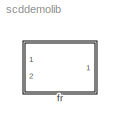
MODEL scddemolib
KIND library
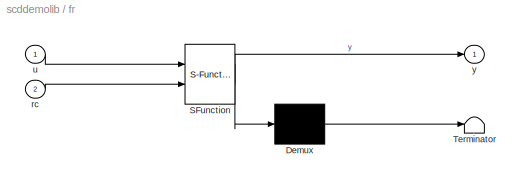
BLOCK [SubSystem] fr
  MaskDescription = Embedded MATLAB block
  MaskDisplay = disp('fcn');
  MaskIconFrame = on
  MaskIconOpaque = off
  MaskIconRotate = none
  MaskIconUnits = autoscale
  MaskSelfModifiable = on
  MaskType = Stateflow
  MinAlgLoopOccurrences = off
  Ports = [2, 1]
  PropExecContextAcrossSSBoundary = on
  RTWSystemCode = Auto
  TreatAsAtomicUnit = off
BLOCK [Demux] fr/ Demux 
  Outputs = 1
  Ports = [1, 1]
BLOCK [S-Function] fr/ SFunction 
  FunctionName = sf_sfun
  PortCounts = [2 2]
  Ports = [2, 2]
  Tag = Stateflow S-Function scddemolib 4
BLOCK [Terminator] fr/ Terminator 
BLOCK [Inport] fr/rc
  IconDisplay = Port number
  LatchInput = off
  Port = 2
BLOCK [Inport] fr/u
  IconDisplay = Port number
  LatchInput = off
BLOCK [Outport] fr/y
  BusOutputAsStruct = off
  IconDisplay = Port number
LINE fr/ Demux :1 -> fr/ Terminator :1
LINE fr/ SFunction :1 -> fr/ Demux :1
LINE fr/ SFunction :2 -> fr/y:1
LINE fr/rc:1 -> fr/ SFunction :2
LINE fr/u:1 -> fr/ SFunction :1
CHART fr states=1 transitions=1
  STATE_LABEL 'eML_blk_kernel()'
